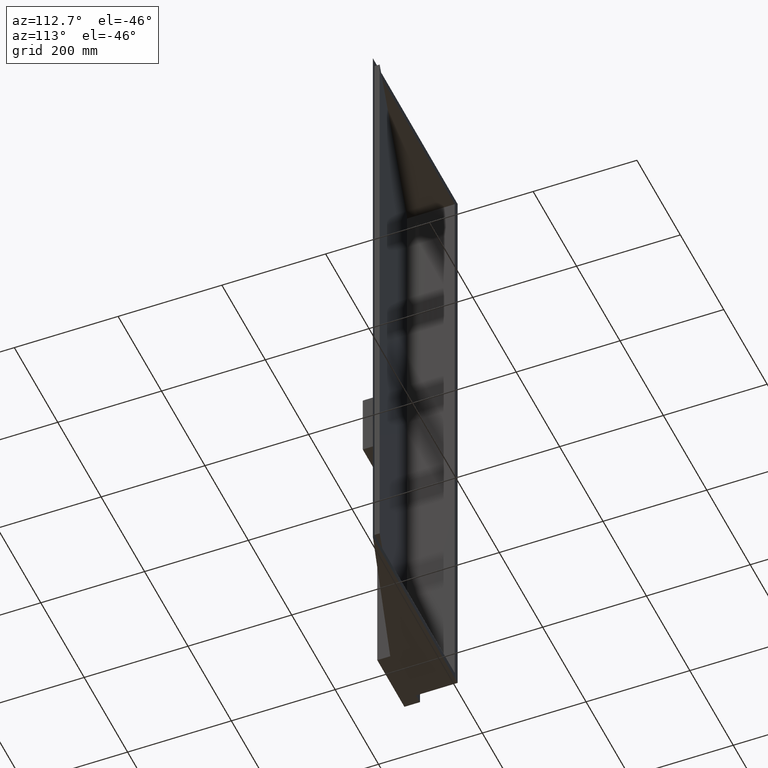
[diagram: clean part render]
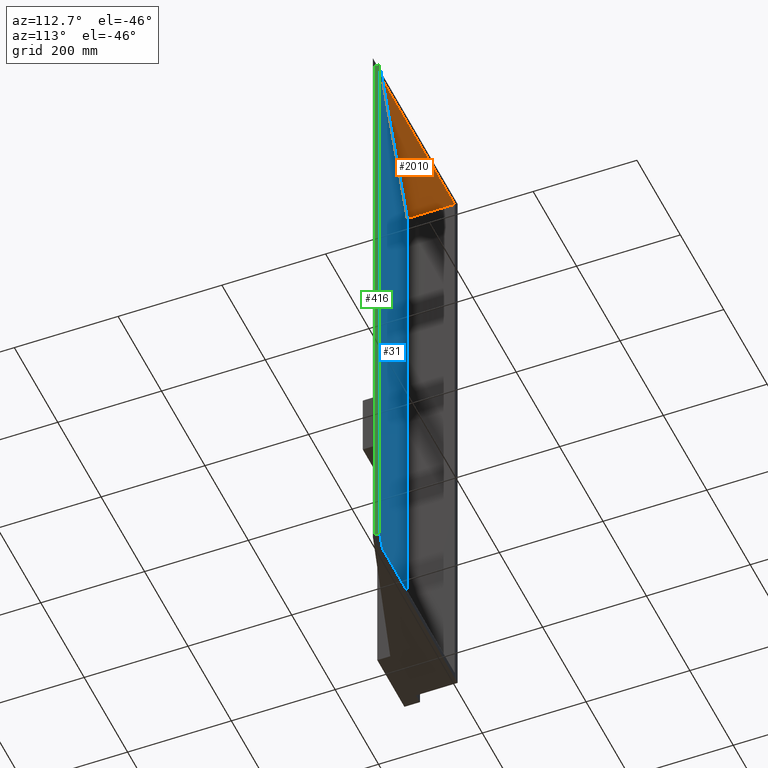
[diagram: same view with three faces highlighted in distinct colors, each labeled with its STEP entity id]
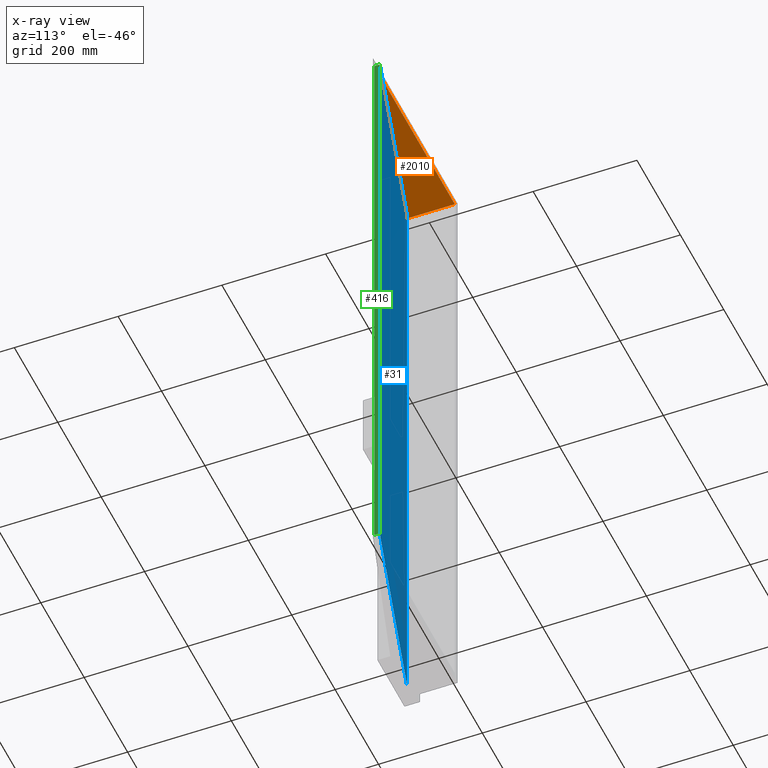
[diagram: x-ray of the same camera — body ghosted, the three highlighted faces saturated]
A machine part, auxiliary view with three faces highlighted in distinct colors.
The next image is the same camera in x-ray (body ghosted, the three faces saturated) — at least one of them is partly hidden behind the body in this view.
Their STEP definitions:

[orange] entity #2010 — the highlighted planar face has unit normal (0, 0, 1).
#35 = VECTOR ( 'NONE', #2724, 1000.000000000000000 ) ;
#154 = DIRECTION ( 'NONE',  ( 1.000000000000000000, 0.0000000000000000000, -0.0000000000000000000 ) ) ;
#224 = LINE ( 'NONE', #2708, #35 ) ;
#291 = LINE ( 'NONE', #2619, #329 ) ;
#321 = FACE_OUTER_BOUND ( 'NONE', #2700, .T. ) ;
#324 = AXIS2_PLACEMENT_3D ( 'NONE', #1026, #716, #154 ) ;
#329 = VECTOR ( 'NONE', #2392, 1000.000000000000000 ) ;
#365 = VECTOR ( 'NONE', #2834, 1000.000000000000000 ) ;
#368 = LINE ( 'NONE', #1060, #365 ) ;
#506 = EDGE_CURVE ( 'NONE', #1358, #1793, #1405, .T. ) ;
#521 = ORIENTED_EDGE ( 'NONE', *, *, #747, .F. ) ;
#537 = PLANE ( 'NONE',  #324 ) ;
#560 = ORIENTED_EDGE ( 'NONE', *, *, #506, .F. ) ;
#667 = ORIENTED_EDGE ( 'NONE', *, *, #1257, .T. ) ;
#679 = EDGE_CURVE ( 'NONE', #1793, #2620, #368, .T. ) ;
#716 = DIRECTION ( 'NONE',  ( 0.0000000000000000000, 0.0000000000000000000, 1.000000000000000000 ) ) ;
#730 = ORIENTED_EDGE ( 'NONE', *, *, #679, .F. ) ;
#733 = ORIENTED_EDGE ( 'NONE', *, *, #1422, .F. ) ;
#747 = EDGE_CURVE ( 'NONE', #2620, #1698, #224, .T. ) ;
#755 = CARTESIAN_POINT ( 'NONE',  ( -68.11638246079655800, -93.50000000000001400, 600.0000000000000000 ) ) ;
#771 = DIRECTION ( 'NONE',  ( 0.9644582868368908300, 0.2642351470786004100, -0.0000000000000000000 ) ) ;
#1026 = CARTESIAN_POINT ( 'NONE',  ( -73.11638246079654400, 9.999999999999955600, 600.0000000000000000 ) ) ;
#1060 = CARTESIAN_POINT ( 'NONE',  ( -86.11638246079655800, 0.0000000000000000000, 600.0000000000000000 ) ) ;
#1179 = CARTESIAN_POINT ( 'NONE',  ( -68.11638246079654400, -90.00000000000001400, 600.0000000000000000 ) ) ;
#1257 = EDGE_CURVE ( 'NONE', #2196, #1698, #291, .T. ) ;
#1358 = VERTEX_POINT ( 'NONE', #1179 ) ;
#1405 = LINE ( 'NONE', #1988, #1817 ) ;
#1422 = EDGE_CURVE ( 'NONE', #2196, #1358, #1909, .T. ) ;
#1698 = VERTEX_POINT ( 'NONE', #2455 ) ;
#1793 = VERTEX_POINT ( 'NONE', #2842 ) ;
#1817 = VECTOR ( 'NONE', #771, 1000.000000000000100 ) ;
#1831 = VECTOR ( 'NONE', #2162, 1000.000000000000000 ) ;
#1909 = LINE ( 'NONE', #2349, #1831 ) ;
#1945 = CARTESIAN_POINT ( 'NONE',  ( -73.11638246079654400, 0.0000000000000000000, 600.0000000000000000 ) ) ;
#1988 = CARTESIAN_POINT ( 'NONE',  ( 296.8836175392034400, 10.00000000000000000, 600.0000000000000000 ) ) ;
#2010 = ADVANCED_FACE ( 'NONE', ( #321 ), #537, .F. ) ;
#2162 = DIRECTION ( 'NONE',  ( 0.0000000000000000000, 1.000000000000000000, 0.0000000000000000000 ) ) ;
#2196 = VERTEX_POINT ( 'NONE', #755 ) ;
#2349 = CARTESIAN_POINT ( 'NONE',  ( -68.11638246079654400, -90.00000000000001400, 600.0000000000000000 ) ) ;
#2392 = DIRECTION ( 'NONE',  ( -1.000000000000000000, -0.0000000000000000000, -0.0000000000000000000 ) ) ;
#2455 = CARTESIAN_POINT ( 'NONE',  ( -73.11638246079655800, -93.50000000000001400, 600.0000000000000000 ) ) ;
#2619 = CARTESIAN_POINT ( 'NONE',  ( 505.2325514354826100, -93.50000000000001400, 600.0000000000000000 ) ) ;
#2620 = VERTEX_POINT ( 'NONE', #1945 ) ;
#2700 = EDGE_LOOP ( 'NONE', ( #560, #733, #667, #521, #730 ) ) ;
#2708 = CARTESIAN_POINT ( 'NONE',  ( -73.11638246079654400, 9.999999999999955600, 600.0000000000000000 ) ) ;
#2724 = DIRECTION ( 'NONE',  ( -1.387778780781446400E-016, -1.000000000000000000, 0.0000000000000000000 ) ) ;
#2834 = DIRECTION ( 'NONE',  ( -1.000000000000000000, 0.0000000000000000000, 0.0000000000000000000 ) ) ;
#2842 = CARTESIAN_POINT ( 'NONE',  ( 260.3836175392035000, 0.0000000000000000000, 600.0000000000000000 ) ) ;

[blue] entity #31 — the highlighted planar face has unit normal (0.2642, -0.9645, 0).
#31 = ADVANCED_FACE ( 'NONE', ( #1929 ), #2787, .F. ) ;
#113 = ORIENTED_EDGE ( 'NONE', *, *, #1826, .F. ) ;
#158 = VERTEX_POINT ( 'NONE', #1833 ) ;
#402 = EDGE_CURVE ( 'NONE', #158, #2908, #1886, .T. ) ;
#506 = EDGE_CURVE ( 'NONE', #1358, #1793, #1405, .T. ) ;
#540 = VECTOR ( 'NONE', #1665, 999.9999999999998900 ) ;
#544 = LINE ( 'NONE', #1682, #540 ) ;
#550 = DIRECTION ( 'NONE',  ( -0.0000000000000000000, -0.0000000000000000000, -1.000000000000000000 ) ) ;
#740 = VECTOR ( 'NONE', #875, 1000.000000000000000 ) ;
#771 = DIRECTION ( 'NONE',  ( 0.9644582868368908300, 0.2642351470786004100, -0.0000000000000000000 ) ) ;
#772 = CARTESIAN_POINT ( 'NONE',  ( -68.11638246079655800, -90.00000000000000000, -600.0000000000001100 ) ) ;
#802 = EDGE_CURVE ( 'NONE', #852, #1140, #2830, .T. ) ;
#852 = VERTEX_POINT ( 'NONE', #772 ) ;
#861 = CARTESIAN_POINT ( 'NONE',  ( -68.11638246079655800, -90.00000000000007100, -996.2753579347357800 ) ) ;
#875 = DIRECTION ( 'NONE',  ( -0.0000000000000000000, -0.0000000000000000000, 1.000000000000000000 ) ) ;
#1029 = LINE ( 'NONE', #1509, #1920 ) ;
#1140 = VERTEX_POINT ( 'NONE', #2913 ) ;
#1179 = CARTESIAN_POINT ( 'NONE',  ( -68.11638246079654400, -90.00000000000001400, 600.0000000000000000 ) ) ;
#1215 = ORIENTED_EDGE ( 'NONE', *, *, #1625, .F. ) ;
#1314 = ORIENTED_EDGE ( 'NONE', *, *, #402, .T. ) ;
#1318 = LINE ( 'NONE', #861, #740 ) ;
#1355 = DIRECTION ( 'NONE',  ( 0.2642351470786004100, -0.9644582868368909400, 0.0000000000000000000 ) ) ;
#1358 = VERTEX_POINT ( 'NONE', #1179 ) ;
#1392 = CARTESIAN_POINT ( 'NONE',  ( 296.8836175392034400, 10.00000000000000000, 613.0000000000000000 ) ) ;
#1404 = ORIENTED_EDGE ( 'NONE', *, *, #2662, .T. ) ;
#1405 = LINE ( 'NONE', #1988, #1817 ) ;
#1471 = DIRECTION ( 'NONE',  ( -0.9644582868368909400, -0.2642351470786004100, 0.0000000000000000000 ) ) ;
#1496 = DIRECTION ( 'NONE',  ( 0.9644582868368909400, 0.2642351470786004100, 0.0000000000000000000 ) ) ;
#1509 = CARTESIAN_POINT ( 'NONE',  ( 296.8836175392034400, 10.00000000000000000, 600.0000000000000000 ) ) ;
#1625 = EDGE_CURVE ( 'NONE', #1140, #2908, #544, .T. ) ;
#1665 = DIRECTION ( 'NONE',  ( 0.9644582868368909400, 0.2642351470786004100, 0.0000000000000000000 ) ) ;
#1682 = CARTESIAN_POINT ( 'NONE',  ( 296.8836175392034400, 10.00000000000000000, -600.0000000000001100 ) ) ;
#1793 = VERTEX_POINT ( 'NONE', #2842 ) ;
#1817 = VECTOR ( 'NONE', #771, 1000.000000000000100 ) ;
#1826 = EDGE_CURVE ( 'NONE', #158, #1793, #1029, .T. ) ;
#1833 = CARTESIAN_POINT ( 'NONE',  ( 296.8836175392034400, 10.00000000000000000, 600.0000000000000000 ) ) ;
#1886 = LINE ( 'NONE', #1392, #1891 ) ;
#1891 = VECTOR ( 'NONE', #550, 1000.000000000000000 ) ;
#1920 = VECTOR ( 'NONE', #1471, 999.9999999999998900 ) ;
#1929 = FACE_OUTER_BOUND ( 'NONE', #2141, .T. ) ;
#1972 = DIRECTION ( 'NONE',  ( 0.9644582868368908300, 0.2642351470786004100, 0.0000000000000000000 ) ) ;
#1988 = CARTESIAN_POINT ( 'NONE',  ( 296.8836175392034400, 10.00000000000000000, 600.0000000000000000 ) ) ;
#2141 = EDGE_LOOP ( 'NONE', ( #1215, #2578, #1404, #2656, #113, #1314 ) ) ;
#2382 = AXIS2_PLACEMENT_3D ( 'NONE', #2734, #1355, #1496 ) ;
#2578 = ORIENTED_EDGE ( 'NONE', *, *, #802, .F. ) ;
#2656 = ORIENTED_EDGE ( 'NONE', *, *, #506, .T. ) ;
#2662 = EDGE_CURVE ( 'NONE', #852, #1358, #1318, .T. ) ;
#2722 = CARTESIAN_POINT ( 'NONE',  ( 296.8836175392034400, 10.00000000000000000, -600.0000000000000000 ) ) ;
#2734 = CARTESIAN_POINT ( 'NONE',  ( 296.8836175392034400, 10.00000000000000000, 613.0000000000000000 ) ) ;
#2745 = CARTESIAN_POINT ( 'NONE',  ( 296.8836175392034400, 10.00000000000000000, -600.0000000000000000 ) ) ;
#2787 = PLANE ( 'NONE',  #2382 ) ;
#2830 = LINE ( 'NONE', #2745, #2892 ) ;
#2842 = CARTESIAN_POINT ( 'NONE',  ( 260.3836175392035000, 0.0000000000000000000, 600.0000000000000000 ) ) ;
#2892 = VECTOR ( 'NONE', #1972, 1000.000000000000100 ) ;
#2908 = VERTEX_POINT ( 'NONE', #2722 ) ;
#2913 = CARTESIAN_POINT ( 'NONE',  ( 260.3836175392035000, 0.0000000000000000000, -600.0000000000000000 ) ) ;

[green] entity #416 — the highlighted planar face has unit normal (-1, 0, 0).
#88 = PLANE ( 'NONE',  #902 ) ;
#158 = VERTEX_POINT ( 'NONE', #1833 ) ;
#273 = VERTEX_POINT ( 'NONE', #2050 ) ;
#402 = EDGE_CURVE ( 'NONE', #158, #2908, #1886, .T. ) ;
#416 = ADVANCED_FACE ( 'NONE', ( #2039 ), #88, .F. ) ;
#450 = EDGE_CURVE ( 'NONE', #2908, #2479, #1338, .T. ) ;
#520 = EDGE_CURVE ( 'NONE', #273, #158, #1821, .T. ) ;
#550 = DIRECTION ( 'NONE',  ( -0.0000000000000000000, -0.0000000000000000000, -1.000000000000000000 ) ) ;
#572 = EDGE_CURVE ( 'NONE', #273, #2479, #854, .T. ) ;
#849 = VECTOR ( 'NONE', #1585, 1000.000000000000000 ) ;
#854 = LINE ( 'NONE', #2569, #849 ) ;
#902 = AXIS2_PLACEMENT_3D ( 'NONE', #2057, #1867, #1342 ) ;
#999 = ORIENTED_EDGE ( 'NONE', *, *, #450, .F. ) ;
#1101 = ORIENTED_EDGE ( 'NONE', *, *, #402, .F. ) ;
#1338 = LINE ( 'NONE', #1718, #1401 ) ;
#1342 = DIRECTION ( 'NONE',  ( 0.0000000000000000000, 0.0000000000000000000, 1.000000000000000000 ) ) ;
#1392 = CARTESIAN_POINT ( 'NONE',  ( 296.8836175392034400, 10.00000000000000000, 613.0000000000000000 ) ) ;
#1401 = VECTOR ( 'NONE', #2163, 1000.000000000000000 ) ;
#1585 = DIRECTION ( 'NONE',  ( -0.0000000000000000000, -0.0000000000000000000, -1.000000000000000000 ) ) ;
#1587 = ORIENTED_EDGE ( 'NONE', *, *, #520, .F. ) ;
#1613 = DIRECTION ( 'NONE',  ( 0.0000000000000000000, 1.000000000000000000, 0.0000000000000000000 ) ) ;
#1718 = CARTESIAN_POINT ( 'NONE',  ( 296.8836175392034400, 0.0000000000000000000, -600.0000000000001100 ) ) ;
#1732 = ORIENTED_EDGE ( 'NONE', *, *, #572, .T. ) ;
#1738 = CARTESIAN_POINT ( 'NONE',  ( 296.8836175392034400, 0.0000000000000000000, 600.0000000000000000 ) ) ;
#1821 = LINE ( 'NONE', #1738, #1995 ) ;
#1833 = CARTESIAN_POINT ( 'NONE',  ( 296.8836175392034400, 10.00000000000000000, 600.0000000000000000 ) ) ;
#1867 = DIRECTION ( 'NONE',  ( -1.000000000000000000, 0.0000000000000000000, 0.0000000000000000000 ) ) ;
#1886 = LINE ( 'NONE', #1392, #1891 ) ;
#1891 = VECTOR ( 'NONE', #550, 1000.000000000000000 ) ;
#1995 = VECTOR ( 'NONE', #1613, 1000.000000000000000 ) ;
#2039 = FACE_OUTER_BOUND ( 'NONE', #2211, .T. ) ;
#2050 = CARTESIAN_POINT ( 'NONE',  ( 296.8836175392034400, 0.0000000000000000000, 600.0000000000000000 ) ) ;
#2057 = CARTESIAN_POINT ( 'NONE',  ( 296.8836175392034400, 0.0000000000000000000, 613.0000000000000000 ) ) ;
#2163 = DIRECTION ( 'NONE',  ( 0.0000000000000000000, -1.000000000000000000, 0.0000000000000000000 ) ) ;
#2211 = EDGE_LOOP ( 'NONE', ( #999, #1101, #1587, #1732 ) ) ;
#2479 = VERTEX_POINT ( 'NONE', #2833 ) ;
#2569 = CARTESIAN_POINT ( 'NONE',  ( 296.8836175392034400, 0.0000000000000000000, 613.0000000000000000 ) ) ;
#2722 = CARTESIAN_POINT ( 'NONE',  ( 296.8836175392034400, 10.00000000000000000, -600.0000000000000000 ) ) ;
#2833 = CARTESIAN_POINT ( 'NONE',  ( 296.8836175392034400, 0.0000000000000000000, -600.0000000000000000 ) ) ;
#2908 = VERTEX_POINT ( 'NONE', #2722 ) ;